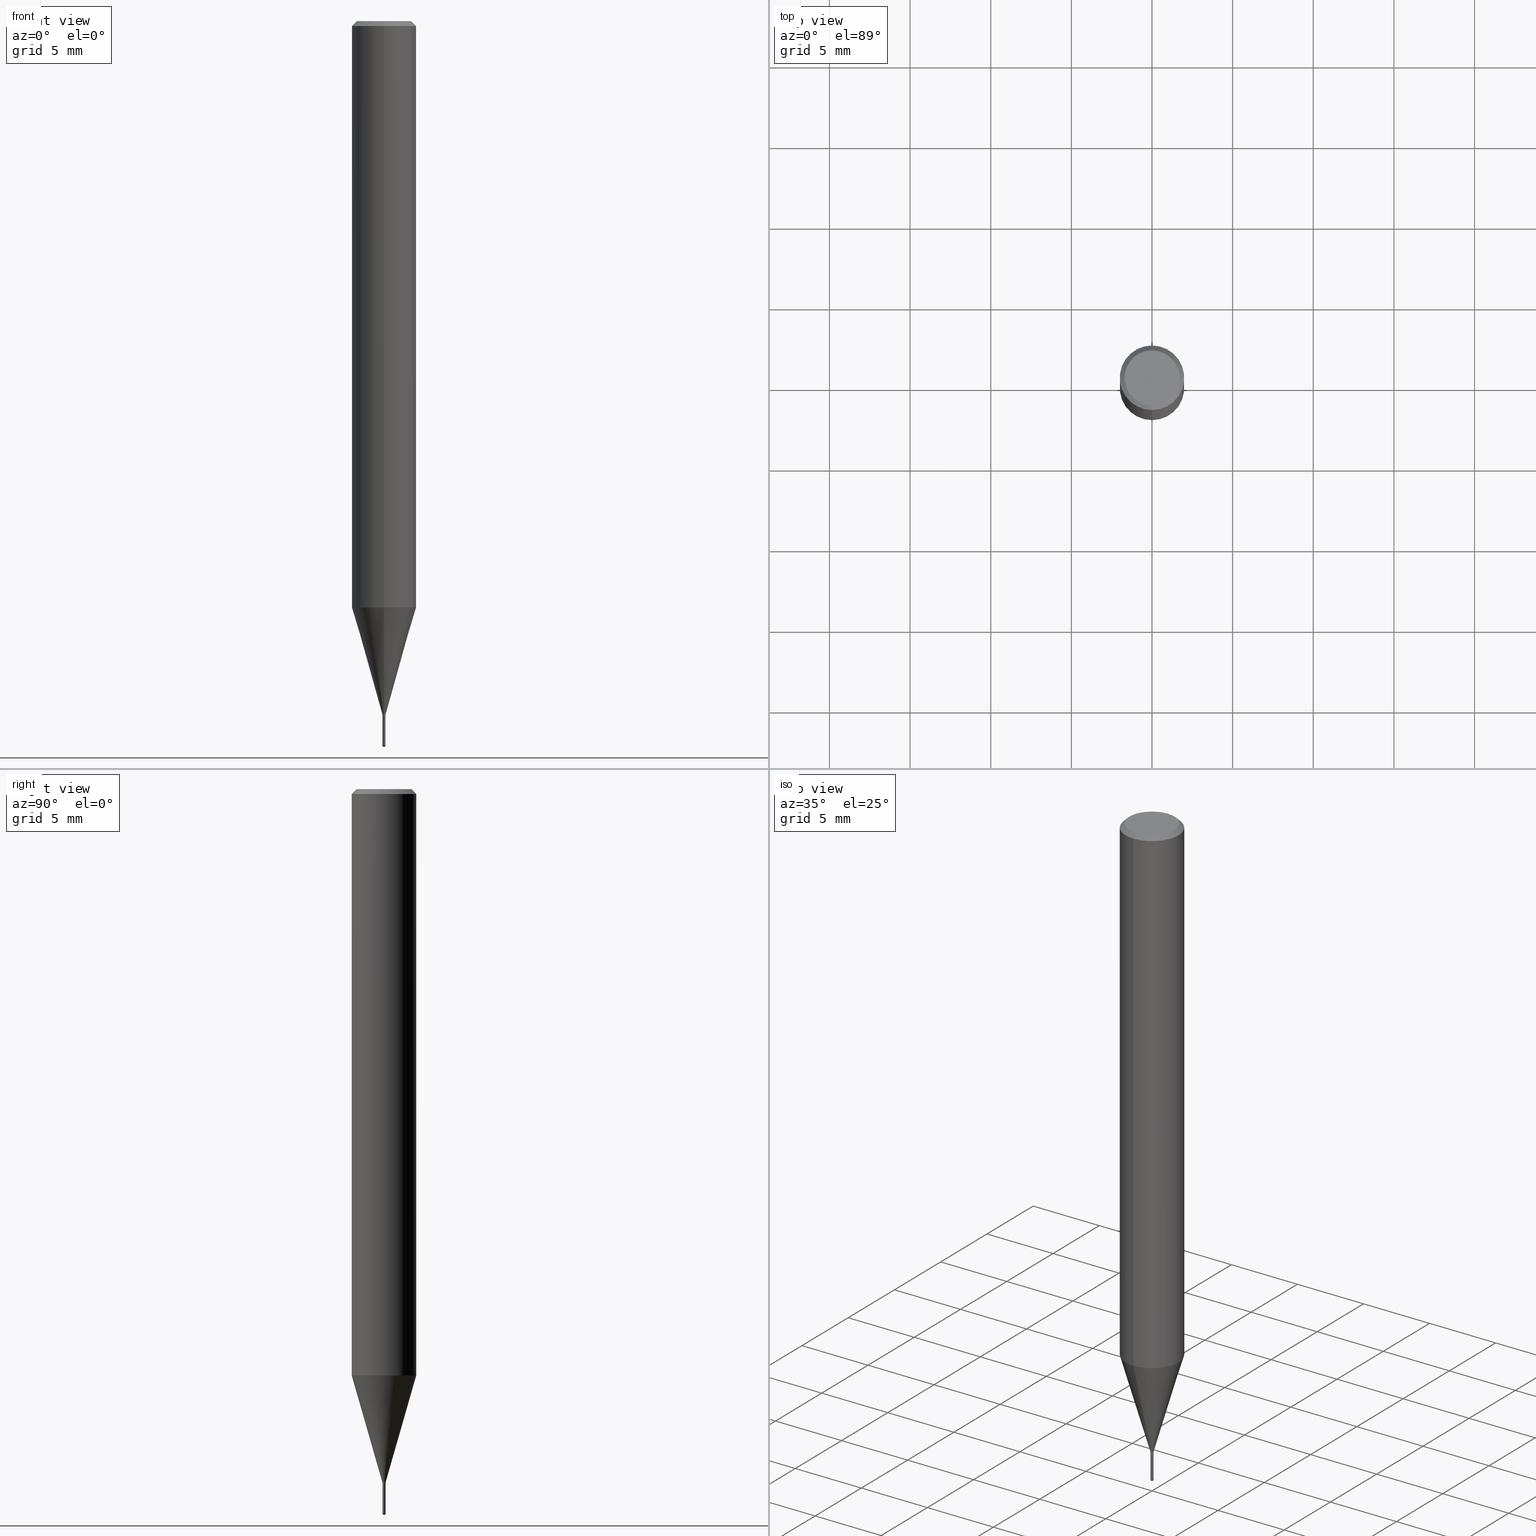
[diagram: canonical four-view strip — front | top / right | iso, engineering-drawing reading convention]
A machine part, canonical four-view strip (front | top / right | iso — engineering-drawing reading convention). The complete STEP part file that produces these views, byte-faithful:
ISO-10303-21;
HEADER;
FILE_DESCRIPTION(('no description'),'unknown implementation level');
FILE_NAME('HSLB2002-020-Huellk.stp','  ',('CIMSOURCE GmbH'),('CADClick - KiM GmbH - www.kimweb.de'),'unknown preprocess','ACIS','unknown authorization');
FILE_SCHEMA(('automotive_design'));
ENDSEC;
DATA;
#1=MECHANICAL_DESIGN_GEOMETRIC_PRESENTATION_REPRESENTATION(' ',(#14,#15,#16,#17,#18,#19,#20,#21,#22,#23,#24,#25,#26,#27,#28,#29,#30,#31,#32,#33,#34,#35,#36,#37,#38,#39,#40,#41,#42,#43,#44,#45,#46,#47,#48,#49,#50,#51,#52,#53,#54,#55,#56,#57,#58,#59,#60,#61,#62,#63,#64,#65,#66,#67,#68,#69,#70,#71,#72,#73,#74),#10);
#2=PRODUCT_DEFINITION_CONTEXT('',#75,'design');
#3=APPLICATION_PROTOCOL_DEFINITION('INTERNATIONAL STANDARD','automotive_design',1994,#75);
#4=PRODUCT_CATEGORY_RELATIONSHIP('NONE','NONE',#76,#77);
#5=SHAPE_DEFINITION_REPRESENTATION(#78,#79);
#6=PRODUCT_DEFINITION_CONTEXT('',#80,'design');
#7=APPLICATION_PROTOCOL_DEFINITION('INTERNATIONAL STANDARD','automotive_design',1994,#80);
#8=PRODUCT_CATEGORY_RELATIONSHIP('NONE','NONE',#81,#82);
#9=SHAPE_DEFINITION_REPRESENTATION(#83,#84);
#10= (GEOMETRIC_REPRESENTATION_CONTEXT(3)GLOBAL_UNCERTAINTY_ASSIGNED_CONTEXT((#87))GLOBAL_UNIT_ASSIGNED_CONTEXT((#89,#90,#91))REPRESENTATION_CONTEXT('NONE','WORKSPACE'));
#14=STYLED_ITEM('',(#93),#94);
#15=STYLED_ITEM('',(#95),#96);
#16=STYLED_ITEM('',(#97),#98);
#17=STYLED_ITEM('',(#99),#100);
#18=STYLED_ITEM('',(#101),#102);
#19=STYLED_ITEM('',(#103),#104);
#20=STYLED_ITEM('',(#105),#106);
#21=STYLED_ITEM('',(#107),#108);
#22=STYLED_ITEM('',(#109),#110);
#23=STYLED_ITEM('',(#111),#112);
#24=STYLED_ITEM('',(#113),#114);
#25=STYLED_ITEM('',(#115),#116);
#26=STYLED_ITEM('',(#117),#118);
#27=STYLED_ITEM('',(#119),#120);
#28=STYLED_ITEM('',(#121),#122);
#29=STYLED_ITEM('',(#123),#124);
#30=STYLED_ITEM('',(#125),#126);
#31=STYLED_ITEM('',(#127),#128);
#32=STYLED_ITEM('',(#129),#130);
#33=STYLED_ITEM('',(#131),#132);
#34=STYLED_ITEM('',(#133),#134);
#35=STYLED_ITEM('',(#135),#136);
#36=STYLED_ITEM('',(#137),#138);
#37=STYLED_ITEM('',(#139),#140);
#38=STYLED_ITEM('',(#141),#142);
#39=STYLED_ITEM('',(#143),#144);
#40=STYLED_ITEM('',(#145),#146);
#41=STYLED_ITEM('',(#147),#148);
#42=STYLED_ITEM('',(#149),#150);
#43=STYLED_ITEM('',(#151),#152);
#44=STYLED_ITEM('',(#153),#154);
#45=STYLED_ITEM('',(#155),#156);
#46=STYLED_ITEM('',(#157),#158);
#47=STYLED_ITEM('',(#159),#160);
#48=STYLED_ITEM('',(#161),#162);
#49=STYLED_ITEM('',(#163),#164);
#50=STYLED_ITEM('',(#165),#166);
#51=STYLED_ITEM('',(#167),#168);
#52=STYLED_ITEM('',(#169),#170);
#53=STYLED_ITEM('',(#171),#172);
#54=STYLED_ITEM('',(#173),#174);
#55=STYLED_ITEM('',(#175),#176);
#56=STYLED_ITEM('',(#177),#178);
#57=STYLED_ITEM('',(#179),#180);
#58=STYLED_ITEM('',(#181),#182);
#59=STYLED_ITEM('',(#183),#184);
#60=STYLED_ITEM('',(#185),#186);
#61=STYLED_ITEM('',(#187),#188);
#62=STYLED_ITEM('',(#189),#190);
#63=STYLED_ITEM('',(#191),#192);
#64=STYLED_ITEM('',(#193),#194);
#65=STYLED_ITEM('',(#195),#196);
#66=STYLED_ITEM('',(#197),#198);
#67=STYLED_ITEM('',(#199),#200);
#68=STYLED_ITEM('',(#201),#202);
#69=STYLED_ITEM('',(#203),#204);
#70=STYLED_ITEM('',(#205),#206);
#71=STYLED_ITEM('',(#207),#208);
#72=STYLED_ITEM('',(#209),#210);
#73=STYLED_ITEM('',(#211),#212);
#74=STYLED_ITEM('',(#213),#214);
#75=APPLICATION_CONTEXT(' ');
#76=PRODUCT_CATEGORY('part','NONE');
#77=PRODUCT_RELATED_PRODUCT_CATEGORY('detail',' ',(#215));
#78=PRODUCT_DEFINITION_SHAPE('NONE','NONE',#216);
#79=ADVANCED_BREP_SHAPE_REPRESENTATION('1',(#150,#217),#10);
#80=APPLICATION_CONTEXT(' ');
#81=PRODUCT_CATEGORY('part','NONE');
#82=PRODUCT_RELATED_PRODUCT_CATEGORY('detail',' ',(#218));
#83=PRODUCT_DEFINITION_SHAPE('NONE','NONE',#219);
#84=ADVANCED_BREP_SHAPE_REPRESENTATION('2',(#160,#220),#10);
#87=UNCERTAINTY_MEASURE_WITH_UNIT(LENGTH_MEASURE(1.0E-006),#89,'','');
#89= (CONVERSION_BASED_UNIT('MILLIMETRE',#223)LENGTH_UNIT()NAMED_UNIT(#226));
#90= (NAMED_UNIT(#228)PLANE_ANGLE_UNIT()SI_UNIT($,.RADIAN.));
#91= (NAMED_UNIT(#228)SOLID_ANGLE_UNIT()SI_UNIT($,.STERADIAN.));
#93=PRESENTATION_STYLE_ASSIGNMENT((#234));
#94=EDGE_CURVE('',#116,#190,#235,.T.);
#95=PRESENTATION_STYLE_ASSIGNMENT((#236));
#96=ADVANCED_FACE('',(#237),#238,.T.);
#97=PRESENTATION_STYLE_ASSIGNMENT((#239));
#98=VERTEX_POINT('',#240);
#99=PRESENTATION_STYLE_ASSIGNMENT((#241));
#100=EDGE_CURVE('',#192,#112,#242,.T.);
#101=PRESENTATION_STYLE_ASSIGNMENT((#243));
#102=ADVANCED_FACE('',(#244),#245,.T.);
#103=PRESENTATION_STYLE_ASSIGNMENT((#246));
#104=VERTEX_POINT('',#247);
#105=PRESENTATION_STYLE_ASSIGNMENT((#248));
#106=VERTEX_POINT('',#249);
#107=PRESENTATION_STYLE_ASSIGNMENT((#250));
#108=EDGE_CURVE('',#190,#210,#251,.T.);
#109=PRESENTATION_STYLE_ASSIGNMENT((#252));
#110=VERTEX_POINT('',#253);
#111=PRESENTATION_STYLE_ASSIGNMENT((#254));
#112=VERTEX_POINT('',#255);
#113=PRESENTATION_STYLE_ASSIGNMENT((#256));
#114=ADVANCED_FACE('',(#257),#258,.T.);
#115=PRESENTATION_STYLE_ASSIGNMENT((#259));
#116=VERTEX_POINT('',#260);
#117=PRESENTATION_STYLE_ASSIGNMENT((#261));
#118=ADVANCED_FACE('',(#262),#263,.T.);
#119=PRESENTATION_STYLE_ASSIGNMENT((#264));
#120=EDGE_CURVE('',#110,#210,#265,.T.);
#121=PRESENTATION_STYLE_ASSIGNMENT((#266));
#122=ADVANCED_FACE('',(#267),#268,.T.);
#123=PRESENTATION_STYLE_ASSIGNMENT((#269));
#124=ADVANCED_FACE('',(#270),#271,.T.);
#125=PRESENTATION_STYLE_ASSIGNMENT((#272));
#126=ADVANCED_FACE('',(#273),#274,.T.);
#127=PRESENTATION_STYLE_ASSIGNMENT((#275));
#128=VERTEX_POINT('',#276);
#129=PRESENTATION_STYLE_ASSIGNMENT((#277));
#130=EDGE_CURVE('',#98,#128,#278,.T.);
#131=PRESENTATION_STYLE_ASSIGNMENT((#279));
#132=ADVANCED_FACE('',(#280,#281),#282,.T.);
#133=PRESENTATION_STYLE_ASSIGNMENT((#283));
#134=VERTEX_POINT('',#284);
#135=PRESENTATION_STYLE_ASSIGNMENT((#285));
#136=VERTEX_POINT('',#286);
#137=PRESENTATION_STYLE_ASSIGNMENT((#287));
#138=EDGE_CURVE('',#128,#98,#288,.T.);
#139=PRESENTATION_STYLE_ASSIGNMENT((#289));
#140=ADVANCED_FACE('',(#290),#291,.T.);
#141=PRESENTATION_STYLE_ASSIGNMENT((#292));
#142=EDGE_CURVE('',#134,#190,#293,.T.);
#143=PRESENTATION_STYLE_ASSIGNMENT((#294));
#144=EDGE_CURVE('',#98,#192,#295,.T.);
#145=PRESENTATION_STYLE_ASSIGNMENT((#296));
#146=EDGE_CURVE('',#134,#182,#297,.T.);
#147=PRESENTATION_STYLE_ASSIGNMENT((#298));
#148=EDGE_CURVE('',#106,#104,#299,.T.);
#149=PRESENTATION_STYLE_ASSIGNMENT((#300));
#150=MANIFOLD_SOLID_BREP('1',#301);
#151=PRESENTATION_STYLE_ASSIGNMENT((#302));
#152=VERTEX_POINT('',#303);
#153=PRESENTATION_STYLE_ASSIGNMENT((#304));
#154=EDGE_CURVE('',#110,#116,#305,.T.);
#155=PRESENTATION_STYLE_ASSIGNMENT((#306));
#156=EDGE_CURVE('',#192,#200,#307,.T.);
#157=PRESENTATION_STYLE_ASSIGNMENT((#308));
#158=ADVANCED_FACE('',(#309),#310,.T.);
#159=PRESENTATION_STYLE_ASSIGNMENT((#311));
#160=MANIFOLD_SOLID_BREP('2',#312);
#161=PRESENTATION_STYLE_ASSIGNMENT((#313));
#162=EDGE_CURVE('',#112,#136,#314,.T.);
#163=PRESENTATION_STYLE_ASSIGNMENT((#315));
#164=ADVANCED_FACE('',(#316),#317,.T.);
#165=PRESENTATION_STYLE_ASSIGNMENT((#318));
#166=EDGE_CURVE('',#104,#106,#319,.T.);
#167=PRESENTATION_STYLE_ASSIGNMENT((#320));
#168=EDGE_CURVE('',#152,#198,#321,.T.);
#169=PRESENTATION_STYLE_ASSIGNMENT((#322));
#170=EDGE_CURVE('',#200,#128,#323,.T.);
#171=PRESENTATION_STYLE_ASSIGNMENT((#324));
#172=EDGE_CURVE('',#116,#182,#325,.T.);
#173=PRESENTATION_STYLE_ASSIGNMENT((#326));
#174=EDGE_CURVE('',#182,#134,#327,.T.);
#175=PRESENTATION_STYLE_ASSIGNMENT((#328));
#176=EDGE_CURVE('',#104,#152,#329,.T.);
#177=PRESENTATION_STYLE_ASSIGNMENT((#330));
#178=EDGE_CURVE('',#104,#106,#331,.T.);
#179=PRESENTATION_STYLE_ASSIGNMENT((#332));
#180=EDGE_CURVE('',#190,#116,#333,.T.);
#181=PRESENTATION_STYLE_ASSIGNMENT((#334));
#182=VERTEX_POINT('',#335);
#183=PRESENTATION_STYLE_ASSIGNMENT((#336));
#184=EDGE_CURVE('',#136,#200,#337,.T.);
#185=PRESENTATION_STYLE_ASSIGNMENT((#338));
#186=ADVANCED_FACE('',(#339),#340,.T.);
#187=PRESENTATION_STYLE_ASSIGNMENT((#341));
#188=ADVANCED_FACE('',(#342),#343,.T.);
#189=PRESENTATION_STYLE_ASSIGNMENT((#344));
#190=VERTEX_POINT('',#345);
#191=PRESENTATION_STYLE_ASSIGNMENT((#346));
#192=VERTEX_POINT('',#347);
#193=PRESENTATION_STYLE_ASSIGNMENT((#348));
#194=ADVANCED_FACE('',(#349),#350,.T.);
#195=PRESENTATION_STYLE_ASSIGNMENT((#351));
#196=EDGE_CURVE('',#136,#112,#352,.T.);
#197=PRESENTATION_STYLE_ASSIGNMENT((#353));
#198=VERTEX_POINT('',#354);
#199=PRESENTATION_STYLE_ASSIGNMENT((#355));
#200=VERTEX_POINT('',#356);
#201=PRESENTATION_STYLE_ASSIGNMENT((#357));
#202=EDGE_CURVE('',#198,#152,#358,.T.);
#203=PRESENTATION_STYLE_ASSIGNMENT((#359));
#204=ADVANCED_FACE('',(#360),#361,.T.);
#205=PRESENTATION_STYLE_ASSIGNMENT((#362));
#206=EDGE_CURVE('',#200,#192,#363,.T.);
#207=PRESENTATION_STYLE_ASSIGNMENT((#364));
#208=EDGE_CURVE('',#198,#106,#365,.T.);
#209=PRESENTATION_STYLE_ASSIGNMENT((#366));
#210=VERTEX_POINT('',#367);
#211=PRESENTATION_STYLE_ASSIGNMENT((#368));
#212=ADVANCED_FACE('',(#369),#370,.T.);
#213=PRESENTATION_STYLE_ASSIGNMENT((#371));
#214=EDGE_CURVE('',#210,#110,#372,.T.);
#215=PRODUCT('1','1','PART-1-DESC',(#373));
#216=PRODUCT_DEFINITION('NONE','NONE',#374,#2);
#217=AXIS2_PLACEMENT_3D('',#375,#376,#377);
#218=PRODUCT('2','2','PART-2-DESC',(#378));
#219=PRODUCT_DEFINITION('NONE','NONE',#379,#6);
#220=AXIS2_PLACEMENT_3D('',#380,#381,#382);
#223=LENGTH_MEASURE_WITH_UNIT(LENGTH_MEASURE(1.0),#383);
#226=DIMENSIONAL_EXPONENTS(1.0,0.0,0.0,0.0,0.0,0.0,0.0);
#228=DIMENSIONAL_EXPONENTS(0.0,0.0,0.0,0.0,0.0,0.0,0.0);
#234=CURVE_STYLE('',#384,POSITIVE_LENGTH_MEASURE(1.0E-006),#385);
#235=CIRCLE('',#386,0.09495);
#236=SURFACE_STYLE_USAGE(.BOTH.,#387);
#237=FACE_OUTER_BOUND('',#388,.T.);
#238=SPHERICAL_SURFACE('',#389,0.1);
#239=POINT_STYLE(' ',#390,POSITIVE_LENGTH_MEASURE(1.0E-006),#391);
#240=CARTESIAN_POINT('',(0.0,1.7,0.0));
#241=CURVE_STYLE('',#392,POSITIVE_LENGTH_MEASURE(1.0E-006),#393);
#242=LINE('',#394,#395);
#243=SURFACE_STYLE_USAGE(.BOTH.,#396);
#244=FACE_OUTER_BOUND('',#397,.T.);
#245=CYLINDRICAL_SURFACE('',#398,0.09495);
#246=POINT_STYLE(' ',#399,POSITIVE_LENGTH_MEASURE(1.0E-006),#400);
#247=CARTESIAN_POINT('',(1.22460635382238E-017,-0.1,-44.9));
#248=POINT_STYLE(' ',#401,POSITIVE_LENGTH_MEASURE(1.0E-006),#402);
#249=CARTESIAN_POINT('',(0.0,0.1,-44.9));
#250=CURVE_STYLE('',#403,POSITIVE_LENGTH_MEASURE(1.0E-006),#404);
#251=LINE('',#405,#406);
#252=POINT_STYLE(' ',#407,POSITIVE_LENGTH_MEASURE(1.0E-006),#408);
#253=CARTESIAN_POINT('',(0.0,1.99995,-36.356));
#254=POINT_STYLE(' ',#409,POSITIVE_LENGTH_MEASURE(1.0E-006),#410);
#255=CARTESIAN_POINT('',(0.0,2.0,-36.356));
#256=SURFACE_STYLE_USAGE(.BOTH.,#411);
#257=FACE_OUTER_BOUND('',#412,.T.);
#258=SPHERICAL_SURFACE('',#413,0.1);
#259=POINT_STYLE(' ',#414,POSITIVE_LENGTH_MEASURE(1.0E-006),#415);
#260=CARTESIAN_POINT('',(0.0,0.09495,-43.0));
#261=SURFACE_STYLE_USAGE(.BOTH.,#416);
#262=FACE_OUTER_BOUND('',#417,.T.);
#263=CONICAL_SURFACE('',#418,1.85,0.785398163397453);
#264=CURVE_STYLE('',#419,POSITIVE_LENGTH_MEASURE(1.0E-006),#420);
#265=CIRCLE('',#421,1.99995);
#266=SURFACE_STYLE_USAGE(.BOTH.,#422);
#267=FACE_OUTER_BOUND('',#423,.T.);
#268=CONICAL_SURFACE('',#424,0.09995,0.00166666512345941);
#269=SURFACE_STYLE_USAGE(.BOTH.,#425);
#270=FACE_OUTER_BOUND('',#426,.T.);
#271=CONICAL_SURFACE('',#427,1.04745,0.279233718115795);
#272=SURFACE_STYLE_USAGE(.BOTH.,#428);
#273=FACE_OUTER_BOUND('',#429,.T.);
#274=CYLINDRICAL_SURFACE('',#430,2.0);
#275=POINT_STYLE(' ',#431,POSITIVE_LENGTH_MEASURE(1.0E-006),#432);
#276=CARTESIAN_POINT('',(2.08183080149804E-016,-1.7,0.0));
#277=CURVE_STYLE('',#433,POSITIVE_LENGTH_MEASURE(1.0E-006),#434);
#278=CIRCLE('',#435,1.7);
#279=SURFACE_STYLE_USAGE(.BOTH.,#436);
#280=FACE_OUTER_BOUND('',#437,.T.);
#281=FACE_BOUND('',#438,.T.);
#282=PLANE('',#439);
#283=POINT_STYLE(' ',#440,POSITIVE_LENGTH_MEASURE(1.0E-006),#441);
#284=CARTESIAN_POINT('',(1.16276373295435E-017,-0.09495,-44.84));
#285=POINT_STYLE(' ',#442,POSITIVE_LENGTH_MEASURE(1.0E-006),#443);
#286=CARTESIAN_POINT('',(2.44921270764475E-016,-2.0,-36.356));
#287=CURVE_STYLE('',#444,POSITIVE_LENGTH_MEASURE(1.0E-006),#445);
#288=CIRCLE('',#446,1.7);
#289=SURFACE_STYLE_USAGE(.BOTH.,#447);
#290=FACE_OUTER_BOUND('',#448,.T.);
#291=CONICAL_SURFACE('',#449,1.85,0.785398163397453);
#292=CURVE_STYLE('',#450,POSITIVE_LENGTH_MEASURE(1.0E-006),#451);
#293=LINE('',#452,#453);
#294=CURVE_STYLE('',#454,POSITIVE_LENGTH_MEASURE(1.0E-006),#455);
#295=LINE('',#456,#457);
#296=CURVE_STYLE('',#458,POSITIVE_LENGTH_MEASURE(1.0E-006),#459);
#297=CIRCLE('',#460,0.09495);
#298=CURVE_STYLE('',#461,POSITIVE_LENGTH_MEASURE(1.0E-006),#462);
#299=CIRCLE('',#463,0.1);
#300=SURFACE_STYLE_USAGE(.BOTH.,#464);
#301=CLOSED_SHELL('',(#194,#124,#126,#140,#132,#212,#118,#204,#188,#102,#158));
#302=POINT_STYLE(' ',#465,POSITIVE_LENGTH_MEASURE(1.0E-006),#466);
#303=CARTESIAN_POINT('',(1.22338174746855E-017,-0.0999,-44.84));
#304=CURVE_STYLE('',#467,POSITIVE_LENGTH_MEASURE(1.0E-006),#468);
#305=LINE('',#469,#470);
#306=CURVE_STYLE('',#471,POSITIVE_LENGTH_MEASURE(1.0E-006),#472);
#307=CIRCLE('',#473,2.0);
#308=SURFACE_STYLE_USAGE(.BOTH.,#474);
#309=FACE_OUTER_BOUND('',#475,.T.);
#310=PLANE('',#476);
#311=SURFACE_STYLE_USAGE(.BOTH.,#477);
#312=CLOSED_SHELL('',(#114,#122,#164,#186,#96));
#313=CURVE_STYLE('',#478,POSITIVE_LENGTH_MEASURE(1.0E-006),#479);
#314=CIRCLE('',#480,2.0);
#315=SURFACE_STYLE_USAGE(.BOTH.,#481);
#316=FACE_OUTER_BOUND('',#482,.T.);
#317=PLANE('',#483);
#318=CURVE_STYLE('',#484,POSITIVE_LENGTH_MEASURE(1.0E-006),#485);
#319=CIRCLE('',#486,0.1);
#320=CURVE_STYLE('',#487,POSITIVE_LENGTH_MEASURE(1.0E-006),#488);
#321=CIRCLE('',#489,0.0999);
#322=CURVE_STYLE('',#490,POSITIVE_LENGTH_MEASURE(1.0E-006),#491);
#323=LINE('',#492,#493);
#324=CURVE_STYLE('',#494,POSITIVE_LENGTH_MEASURE(1.0E-006),#495);
#325=LINE('',#496,#497);
#326=CURVE_STYLE('',#498,POSITIVE_LENGTH_MEASURE(1.0E-006),#499);
#327=CIRCLE('',#500,0.09495);
#328=CURVE_STYLE('',#501,POSITIVE_LENGTH_MEASURE(1.0E-006),#502);
#329=LINE('',#503,#504);
#330=CURVE_STYLE('',#505,POSITIVE_LENGTH_MEASURE(1.0E-006),#506);
#331=CIRCLE('',#507,0.1);
#332=CURVE_STYLE('',#508,POSITIVE_LENGTH_MEASURE(1.0E-006),#509);
#333=CIRCLE('',#510,0.09495);
#334=POINT_STYLE(' ',#511,POSITIVE_LENGTH_MEASURE(1.0E-006),#512);
#335=CARTESIAN_POINT('',(0.0,0.09495,-44.84));
#336=CURVE_STYLE('',#513,POSITIVE_LENGTH_MEASURE(1.0E-006),#514);
#337=LINE('',#515,#516);
#338=SURFACE_STYLE_USAGE(.BOTH.,#517);
#339=FACE_OUTER_BOUND('',#518,.T.);
#340=CONICAL_SURFACE('',#519,0.09995,0.00166666512345941);
#341=SURFACE_STYLE_USAGE(.BOTH.,#520);
#342=FACE_OUTER_BOUND('',#521,.T.);
#343=CONICAL_SURFACE('',#522,1.04745,0.279233718115795);
#344=POINT_STYLE(' ',#523,POSITIVE_LENGTH_MEASURE(1.0E-006),#524);
#345=CARTESIAN_POINT('',(1.16276373295435E-017,-0.09495,-43.0));
#346=POINT_STYLE(' ',#525,POSITIVE_LENGTH_MEASURE(1.0E-006),#526);
#347=CARTESIAN_POINT('',(0.0,2.0,-0.299999999999997));
#348=SURFACE_STYLE_USAGE(.BOTH.,#527);
#349=FACE_OUTER_BOUND('',#528,.T.);
#350=CYLINDRICAL_SURFACE('',#529,0.09495);
#351=CURVE_STYLE('',#530,POSITIVE_LENGTH_MEASURE(1.0E-006),#531);
#352=CIRCLE('',#532,2.0);
#353=POINT_STYLE(' ',#533,POSITIVE_LENGTH_MEASURE(1.0E-006),#534);
#354=CARTESIAN_POINT('',(0.0,0.0999,-44.84));
#355=POINT_STYLE(' ',#535,POSITIVE_LENGTH_MEASURE(1.0E-006),#536);
#356=CARTESIAN_POINT('',(2.44921270764475E-016,-2.0,-0.299999999999997));
#357=CURVE_STYLE('',#537,POSITIVE_LENGTH_MEASURE(1.0E-006),#538);
#358=CIRCLE('',#539,0.0999);
#359=SURFACE_STYLE_USAGE(.BOTH.,#540);
#360=FACE_OUTER_BOUND('',#541,.T.);
#361=CYLINDRICAL_SURFACE('',#542,2.0);
#362=CURVE_STYLE('',#543,POSITIVE_LENGTH_MEASURE(1.0E-006),#544);
#363=CIRCLE('',#545,2.0);
#364=CURVE_STYLE('',#546,POSITIVE_LENGTH_MEASURE(1.0E-006),#547);
#365=LINE('',#548,#549);
#366=POINT_STYLE(' ',#550,POSITIVE_LENGTH_MEASURE(1.0E-006),#551);
#367=CARTESIAN_POINT('',(2.44915147732706E-016,-1.99995,-36.356));
#368=SURFACE_STYLE_USAGE(.BOTH.,#552);
#369=FACE_OUTER_BOUND('',#553,.T.);
#370=PLANE('',#554);
#371=CURVE_STYLE('',#555,POSITIVE_LENGTH_MEASURE(1.0E-006),#556);
#372=CIRCLE('',#557,1.99995);
#373=PRODUCT_CONTEXT('',#75,'mechanical');
#374=PRODUCT_DEFINITION_FORMATION_WITH_SPECIFIED_SOURCE(' ','NONE',#215,.NOT_KNOWN.);
#375=CARTESIAN_POINT('',(0.0,0.0,0.0));
#376=DIRECTION('',(0.0,0.0,1.0));
#377=DIRECTION('',(1.0,0.0,0.0));
#378=PRODUCT_CONTEXT('',#80,'mechanical');
#379=PRODUCT_DEFINITION_FORMATION_WITH_SPECIFIED_SOURCE(' ','NONE',#218,.NOT_KNOWN.);
#380=CARTESIAN_POINT('',(0.0,0.0,0.0));
#381=DIRECTION('',(0.0,0.0,1.0));
#382=DIRECTION('',(1.0,0.0,0.0));
#383= (NAMED_UNIT(#226)LENGTH_UNIT()SI_UNIT(.MILLI.,.METRE.));
#384=DRAUGHTING_PRE_DEFINED_CURVE_FONT('continuous');
#385=COLOUR_RGB('',0.498039215803146,0.498039215803146,0.498039215803146);
#386=AXIS2_PLACEMENT_3D('',#559,#560,#561);
#387=SURFACE_SIDE_STYLE('',(#562));
#388=EDGE_LOOP('',(#563,#564));
#389=AXIS2_PLACEMENT_3D('',#565,#566,#567);
#390=PRE_DEFINED_MARKER('');
#391=COLOUR_RGB('',0.498039215803146,0.498039215803146,0.498039215803146);
#392=DRAUGHTING_PRE_DEFINED_CURVE_FONT('continuous');
#393=COLOUR_RGB('',0.498039215803146,0.498039215803146,0.498039215803146);
#394=CARTESIAN_POINT('',(-2.44921270764475E-016,2.0,-18.328));
#395=VECTOR('',#568,1.0);
#396=SURFACE_SIDE_STYLE('',(#569));
#397=EDGE_LOOP('',(#570,#571,#572,#573));
#398=AXIS2_PLACEMENT_3D('',#574,#575,#576);
#399=PRE_DEFINED_MARKER('');
#400=COLOUR_RGB('',0.800000011920929,0.800000011920929,0.800000011920929);
#401=PRE_DEFINED_MARKER('');
#402=COLOUR_RGB('',0.800000011920929,0.800000011920929,0.800000011920929);
#403=DRAUGHTING_PRE_DEFINED_CURVE_FONT('continuous');
#404=COLOUR_RGB('',0.498039215803146,0.498039215803146,0.498039215803146);
#405=CARTESIAN_POINT('',(1.28271392531125E-016,-1.04745,-39.678));
#406=VECTOR('',#577,1.0);
#407=PRE_DEFINED_MARKER('');
#408=COLOUR_RGB('',0.498039215803146,0.498039215803146,0.498039215803146);
#409=PRE_DEFINED_MARKER('');
#410=COLOUR_RGB('',0.498039215803146,0.498039215803146,0.498039215803146);
#411=SURFACE_SIDE_STYLE('',(#578));
#412=EDGE_LOOP('',(#579,#580));
#413=AXIS2_PLACEMENT_3D('',#581,#582,#583);
#414=PRE_DEFINED_MARKER('');
#415=COLOUR_RGB('',0.498039215803146,0.498039215803146,0.498039215803146);
#416=SURFACE_SIDE_STYLE('',(#584));
#417=EDGE_LOOP('',(#585,#586,#587,#588));
#418=AXIS2_PLACEMENT_3D('',#589,#590,#591);
#419=DRAUGHTING_PRE_DEFINED_CURVE_FONT('continuous');
#420=COLOUR_RGB('',0.498039215803146,0.498039215803146,0.498039215803146);
#421=AXIS2_PLACEMENT_3D('',#592,#593,#594);
#422=SURFACE_SIDE_STYLE('',(#595));
#423=EDGE_LOOP('',(#596,#597,#598,#599));
#424=AXIS2_PLACEMENT_3D('',#600,#601,#602);
#425=SURFACE_SIDE_STYLE('',(#603));
#426=EDGE_LOOP('',(#604,#605,#606,#607));
#427=AXIS2_PLACEMENT_3D('',#608,#609,#610);
#428=SURFACE_SIDE_STYLE('',(#611));
#429=EDGE_LOOP('',(#612,#613,#614,#615));
#430=AXIS2_PLACEMENT_3D('',#616,#617,#618);
#431=PRE_DEFINED_MARKER('');
#432=COLOUR_RGB('',0.498039215803146,0.498039215803146,0.498039215803146);
#433=DRAUGHTING_PRE_DEFINED_CURVE_FONT('continuous');
#434=COLOUR_RGB('',0.498039215803146,0.498039215803146,0.498039215803146);
#435=AXIS2_PLACEMENT_3D('',#619,#620,#621);
#436=SURFACE_SIDE_STYLE('',(#622));
#437=EDGE_LOOP('',(#623,#624));
#438=EDGE_LOOP('',(#625,#626));
#439=AXIS2_PLACEMENT_3D('',#627,#628,#629);
#440=PRE_DEFINED_MARKER('');
#441=COLOUR_RGB('',0.498039215803146,0.498039215803146,0.498039215803146);
#442=PRE_DEFINED_MARKER('');
#443=COLOUR_RGB('',0.498039215803146,0.498039215803146,0.498039215803146);
#444=DRAUGHTING_PRE_DEFINED_CURVE_FONT('continuous');
#445=COLOUR_RGB('',0.498039215803146,0.498039215803146,0.498039215803146);
#446=AXIS2_PLACEMENT_3D('',#630,#631,#632);
#447=SURFACE_SIDE_STYLE('',(#633));
#448=EDGE_LOOP('',(#634,#635,#636,#637));
#449=AXIS2_PLACEMENT_3D('',#638,#639,#640);
#450=DRAUGHTING_PRE_DEFINED_CURVE_FONT('continuous');
#451=COLOUR_RGB('',0.498039215803146,0.498039215803146,0.498039215803146);
#452=CARTESIAN_POINT('',(1.16276373295435E-017,-0.09495,-43.92));
#453=VECTOR('',#641,1.0);
#454=DRAUGHTING_PRE_DEFINED_CURVE_FONT('continuous');
#455=COLOUR_RGB('',0.498039215803146,0.498039215803146,0.498039215803146);
#456=CARTESIAN_POINT('',(-2.2655217545714E-016,1.85,-0.149999999999999));
#457=VECTOR('',#642,1.0);
#458=DRAUGHTING_PRE_DEFINED_CURVE_FONT('continuous');
#459=COLOUR_RGB('',0.498039215803146,0.498039215803146,0.498039215803146);
#460=AXIS2_PLACEMENT_3D('',#643,#644,#645);
#461=DRAUGHTING_PRE_DEFINED_CURVE_FONT('continuous');
#462=COLOUR_RGB('',0.800000011920929,0.800000011920929,0.800000011920929);
#463=AXIS2_PLACEMENT_3D('',#646,#647,#648);
#464=SURFACE_SIDE_STYLE('',(#649));
#465=PRE_DEFINED_MARKER('');
#466=COLOUR_RGB('',0.800000011920929,0.800000011920929,0.800000011920929);
#467=DRAUGHTING_PRE_DEFINED_CURVE_FONT('continuous');
#468=COLOUR_RGB('',0.498039215803146,0.498039215803146,0.498039215803146);
#469=CARTESIAN_POINT('',(-1.28271392531125E-016,1.04745,-39.678));
#470=VECTOR('',#650,1.0);
#471=DRAUGHTING_PRE_DEFINED_CURVE_FONT('continuous');
#472=COLOUR_RGB('',0.498039215803146,0.498039215803146,0.498039215803146);
#473=AXIS2_PLACEMENT_3D('',#651,#652,#653);
#474=SURFACE_SIDE_STYLE('',(#654));
#475=EDGE_LOOP('',(#655,#656));
#476=AXIS2_PLACEMENT_3D('',#657,#658,#659);
#477=SURFACE_SIDE_STYLE('',(#660));
#478=DRAUGHTING_PRE_DEFINED_CURVE_FONT('continuous');
#479=COLOUR_RGB('',0.498039215803146,0.498039215803146,0.498039215803146);
#480=AXIS2_PLACEMENT_3D('',#661,#662,#663);
#481=SURFACE_SIDE_STYLE('',(#664));
#482=EDGE_LOOP('',(#665,#666));
#483=AXIS2_PLACEMENT_3D('',#667,#668,#669);
#484=DRAUGHTING_PRE_DEFINED_CURVE_FONT('continuous');
#485=COLOUR_RGB('',0.800000011920929,0.800000011920929,0.800000011920929);
#486=AXIS2_PLACEMENT_3D('',#670,#671,#672);
#487=DRAUGHTING_PRE_DEFINED_CURVE_FONT('continuous');
#488=COLOUR_RGB('',0.800000011920929,0.800000011920929,0.800000011920929);
#489=AXIS2_PLACEMENT_3D('',#673,#674,#675);
#490=DRAUGHTING_PRE_DEFINED_CURVE_FONT('continuous');
#491=COLOUR_RGB('',0.498039215803146,0.498039215803146,0.498039215803146);
#492=CARTESIAN_POINT('',(2.2655217545714E-016,-1.85,-0.149999999999999));
#493=VECTOR('',#676,1.0);
#494=DRAUGHTING_PRE_DEFINED_CURVE_FONT('continuous');
#495=COLOUR_RGB('',0.498039215803146,0.498039215803146,0.498039215803146);
#496=CARTESIAN_POINT('',(-1.16276373295435E-017,0.09495,-43.92));
#497=VECTOR('',#677,1.0);
#498=DRAUGHTING_PRE_DEFINED_CURVE_FONT('continuous');
#499=COLOUR_RGB('',0.498039215803146,0.498039215803146,0.498039215803146);
#500=AXIS2_PLACEMENT_3D('',#678,#679,#680);
#501=DRAUGHTING_PRE_DEFINED_CURVE_FONT('continuous');
#502=COLOUR_RGB('',0.800000011920929,0.800000011920929,0.800000011920929);
#503=CARTESIAN_POINT('',(1.22399405064547E-017,-0.09995,-44.87));
#504=VECTOR('',#681,1.0);
#505=DRAUGHTING_PRE_DEFINED_CURVE_FONT('continuous');
#506=COLOUR_RGB('',0.800000011920929,0.800000011920929,0.800000011920929);
#507=AXIS2_PLACEMENT_3D('',#682,#683,#684);
#508=DRAUGHTING_PRE_DEFINED_CURVE_FONT('continuous');
#509=COLOUR_RGB('',0.498039215803146,0.498039215803146,0.498039215803146);
#510=AXIS2_PLACEMENT_3D('',#685,#686,#687);
#511=PRE_DEFINED_MARKER('');
#512=COLOUR_RGB('',0.498039215803146,0.498039215803146,0.498039215803146);
#513=DRAUGHTING_PRE_DEFINED_CURVE_FONT('continuous');
#514=COLOUR_RGB('',0.498039215803146,0.498039215803146,0.498039215803146);
#515=CARTESIAN_POINT('',(2.44921270764475E-016,-2.0,-18.328));
#516=VECTOR('',#688,1.0);
#517=SURFACE_SIDE_STYLE('',(#689));
#518=EDGE_LOOP('',(#690,#691,#692,#693));
#519=AXIS2_PLACEMENT_3D('',#694,#695,#696);
#520=SURFACE_SIDE_STYLE('',(#697));
#521=EDGE_LOOP('',(#698,#699,#700,#701));
#522=AXIS2_PLACEMENT_3D('',#702,#703,#704);
#523=PRE_DEFINED_MARKER('');
#524=COLOUR_RGB('',0.498039215803146,0.498039215803146,0.498039215803146);
#525=PRE_DEFINED_MARKER('');
#526=COLOUR_RGB('',0.498039215803146,0.498039215803146,0.498039215803146);
#527=SURFACE_SIDE_STYLE('',(#705));
#528=EDGE_LOOP('',(#706,#707,#708,#709));
#529=AXIS2_PLACEMENT_3D('',#710,#711,#712);
#530=DRAUGHTING_PRE_DEFINED_CURVE_FONT('continuous');
#531=COLOUR_RGB('',0.498039215803146,0.498039215803146,0.498039215803146);
#532=AXIS2_PLACEMENT_3D('',#713,#714,#715);
#533=PRE_DEFINED_MARKER('');
#534=COLOUR_RGB('',0.800000011920929,0.800000011920929,0.800000011920929);
#535=PRE_DEFINED_MARKER('');
#536=COLOUR_RGB('',0.498039215803146,0.498039215803146,0.498039215803146);
#537=DRAUGHTING_PRE_DEFINED_CURVE_FONT('continuous');
#538=COLOUR_RGB('',0.800000011920929,0.800000011920929,0.800000011920929);
#539=AXIS2_PLACEMENT_3D('',#716,#717,#718);
#540=SURFACE_SIDE_STYLE('',(#719));
#541=EDGE_LOOP('',(#720,#721,#722,#723));
#542=AXIS2_PLACEMENT_3D('',#724,#725,#726);
#543=DRAUGHTING_PRE_DEFINED_CURVE_FONT('continuous');
#544=COLOUR_RGB('',0.498039215803146,0.498039215803146,0.498039215803146);
#545=AXIS2_PLACEMENT_3D('',#727,#728,#729);
#546=DRAUGHTING_PRE_DEFINED_CURVE_FONT('continuous');
#547=COLOUR_RGB('',0.800000011920929,0.800000011920929,0.800000011920929);
#548=CARTESIAN_POINT('',(-1.22399405064547E-017,0.09995,-44.87));
#549=VECTOR('',#730,1.0);
#550=PRE_DEFINED_MARKER('');
#551=COLOUR_RGB('',0.498039215803146,0.498039215803146,0.498039215803146);
#552=SURFACE_SIDE_STYLE('',(#731));
#553=EDGE_LOOP('',(#732,#733));
#554=AXIS2_PLACEMENT_3D('',#734,#735,#736);
#555=DRAUGHTING_PRE_DEFINED_CURVE_FONT('continuous');
#556=COLOUR_RGB('',0.498039215803146,0.498039215803146,0.498039215803146);
#557=AXIS2_PLACEMENT_3D('',#737,#738,#739);
#559=CARTESIAN_POINT('',(0.0,0.0,-43.0));
#560=DIRECTION('',(0.0,0.0,-1.0));
#561=DIRECTION('',(0.0,1.0,0.0));
#562=SURFACE_STYLE_FILL_AREA(#740);
#563=ORIENTED_EDGE('',*,*,#166,.T.);
#564=ORIENTED_EDGE('',*,*,#148,.T.);
#565=CARTESIAN_POINT('',(0.0,0.0,-44.9));
#566=DIRECTION('',(0.0,1.0,0.0));
#567=DIRECTION('',(0.0,0.0,-1.0));
#568=DIRECTION('',(0.0,0.0,-1.0));
#569=SURFACE_STYLE_FILL_AREA(#741);
#570=ORIENTED_EDGE('',*,*,#172,.T.);
#571=ORIENTED_EDGE('',*,*,#146,.F.);
#572=ORIENTED_EDGE('',*,*,#142,.T.);
#573=ORIENTED_EDGE('',*,*,#180,.T.);
#574=CARTESIAN_POINT('',(0.0,0.0,-43.92));
#575=DIRECTION('',(-0.0,-0.0,1.0));
#576=DIRECTION('',(0.0,1.0,0.0));
#577=DIRECTION('',(3.37524935540219E-017,-0.275619128127744,0.961266922457078));
#578=SURFACE_STYLE_FILL_AREA(#742);
#579=ORIENTED_EDGE('',*,*,#166,.F.);
#580=ORIENTED_EDGE('',*,*,#178,.T.);
#581=CARTESIAN_POINT('',(0.0,0.0,-44.9));
#582=DIRECTION('',(0.0,1.0,0.0));
#583=DIRECTION('',(0.0,0.0,-1.0));
#584=SURFACE_STYLE_FILL_AREA(#743);
#585=ORIENTED_EDGE('',*,*,#144,.T.);
#586=ORIENTED_EDGE('',*,*,#206,.F.);
#587=ORIENTED_EDGE('',*,*,#170,.T.);
#588=ORIENTED_EDGE('',*,*,#138,.T.);
#589=CARTESIAN_POINT('',(0.0,0.0,-0.149999999999999));
#590=DIRECTION('',(0.0,-0.0,-1.0));
#591=DIRECTION('',(0.0,1.0,0.0));
#592=CARTESIAN_POINT('',(0.0,0.0,-36.356));
#593=DIRECTION('',(0.0,0.0,-1.0));
#594=DIRECTION('',(0.0,1.0,0.0));
#595=SURFACE_STYLE_FILL_AREA(#744);
#596=ORIENTED_EDGE('',*,*,#208,.F.);
#597=ORIENTED_EDGE('',*,*,#202,.T.);
#598=ORIENTED_EDGE('',*,*,#176,.F.);
#599=ORIENTED_EDGE('',*,*,#148,.F.);
#600=CARTESIAN_POINT('',(0.0,0.0,-44.87));
#601=DIRECTION('',(0.0,-0.0,-1.0));
#602=DIRECTION('',(0.0,1.0,0.0));
#603=SURFACE_STYLE_FILL_AREA(#745);
#604=ORIENTED_EDGE('',*,*,#154,.F.);
#605=ORIENTED_EDGE('',*,*,#120,.T.);
#606=ORIENTED_EDGE('',*,*,#108,.F.);
#607=ORIENTED_EDGE('',*,*,#94,.F.);
#608=CARTESIAN_POINT('',(0.0,0.0,-39.678));
#609=DIRECTION('',(-0.0,-0.0,1.0));
#610=DIRECTION('',(0.0,1.0,0.0));
#611=SURFACE_STYLE_FILL_AREA(#746);
#612=ORIENTED_EDGE('',*,*,#100,.F.);
#613=ORIENTED_EDGE('',*,*,#156,.T.);
#614=ORIENTED_EDGE('',*,*,#184,.F.);
#615=ORIENTED_EDGE('',*,*,#162,.F.);
#616=CARTESIAN_POINT('',(0.0,0.0,-18.328));
#617=DIRECTION('',(-0.0,-0.0,1.0));
#618=DIRECTION('',(0.0,1.0,0.0));
#619=CARTESIAN_POINT('',(0.0,0.0,0.0));
#620=DIRECTION('',(0.0,0.0,-1.0));
#621=DIRECTION('',(0.0,1.0,0.0));
#622=SURFACE_STYLE_FILL_AREA(#747);
#623=ORIENTED_EDGE('',*,*,#162,.T.);
#624=ORIENTED_EDGE('',*,*,#196,.T.);
#625=ORIENTED_EDGE('',*,*,#120,.F.);
#626=ORIENTED_EDGE('',*,*,#214,.F.);
#627=CARTESIAN_POINT('',(0.0,1.0,-36.356));
#628=DIRECTION('',(0.0,0.0,-1.0));
#629=DIRECTION('',(0.0,1.0,0.0));
#630=CARTESIAN_POINT('',(0.0,0.0,0.0));
#631=DIRECTION('',(0.0,0.0,-1.0));
#632=DIRECTION('',(0.0,1.0,0.0));
#633=SURFACE_STYLE_FILL_AREA(#748);
#634=ORIENTED_EDGE('',*,*,#144,.F.);
#635=ORIENTED_EDGE('',*,*,#130,.T.);
#636=ORIENTED_EDGE('',*,*,#170,.F.);
#637=ORIENTED_EDGE('',*,*,#156,.F.);
#638=CARTESIAN_POINT('',(0.0,0.0,-0.149999999999999));
#639=DIRECTION('',(0.0,-0.0,-1.0));
#640=DIRECTION('',(0.0,1.0,0.0));
#641=DIRECTION('',(-0.0,-0.0,1.0));
#642=DIRECTION('',(-8.6592745707194E-017,0.707106781186551,-0.707106781186544));
#643=CARTESIAN_POINT('',(0.0,0.0,-44.84));
#644=DIRECTION('',(0.0,0.0,-1.0));
#645=DIRECTION('',(0.0,1.0,0.0));
#646=CARTESIAN_POINT('',(0.0,0.0,-44.9));
#647=DIRECTION('',(0.0,0.0,-1.0));
#648=DIRECTION('',(0.0,1.0,0.0));
#649=SURFACE_STYLE_FILL_AREA(#749);
#650=DIRECTION('',(3.37524935540219E-017,-0.275619128127744,-0.961266922457078));
#651=CARTESIAN_POINT('',(0.0,0.0,-0.299999999999997));
#652=DIRECTION('',(0.0,0.0,-1.0));
#653=DIRECTION('',(0.0,1.0,0.0));
#654=SURFACE_STYLE_FILL_AREA(#750);
#655=ORIENTED_EDGE('',*,*,#174,.T.);
#656=ORIENTED_EDGE('',*,*,#146,.T.);
#657=CARTESIAN_POINT('',(0.0,0.047475,-44.84));
#658=DIRECTION('',(0.0,0.0,-1.0));
#659=DIRECTION('',(0.0,1.0,0.0));
#660=SURFACE_STYLE_FILL_AREA(#751);
#661=CARTESIAN_POINT('',(0.0,0.0,-36.356));
#662=DIRECTION('',(0.0,0.0,-1.0));
#663=DIRECTION('',(0.0,1.0,0.0));
#664=SURFACE_STYLE_FILL_AREA(#752);
#665=ORIENTED_EDGE('',*,*,#202,.F.);
#666=ORIENTED_EDGE('',*,*,#168,.F.);
#667=CARTESIAN_POINT('',(0.0,0.04995,-44.84));
#668=DIRECTION('',(-0.0,0.0,1.0));
#669=DIRECTION('',(0.0,-1.0,0.0));
#670=CARTESIAN_POINT('',(0.0,0.0,-44.9));
#671=DIRECTION('',(1.0,0.0,1.22460635382236E-016));
#672=DIRECTION('',(-1.22460635382236E-016,0.0,1.0));
#673=CARTESIAN_POINT('',(0.0,0.0,-44.84));
#674=DIRECTION('',(0.0,0.0,-1.0));
#675=DIRECTION('',(0.0,1.0,0.0));
#676=DIRECTION('',(-8.6592745707194E-017,0.707106781186551,0.707106781186544));
#677=DIRECTION('',(0.0,0.0,-1.0));
#678=CARTESIAN_POINT('',(0.0,0.0,-44.84));
#679=DIRECTION('',(0.0,0.0,-1.0));
#680=DIRECTION('',(0.0,1.0,0.0));
#681=DIRECTION('',(-2.041007754973E-019,0.00166666435185672,0.999998611114005));
#682=CARTESIAN_POINT('',(0.0,0.0,-44.9));
#683=DIRECTION('',(0.0,0.0,-1.0));
#684=DIRECTION('',(0.0,1.0,0.0));
#685=CARTESIAN_POINT('',(0.0,0.0,-43.0));
#686=DIRECTION('',(0.0,0.0,-1.0));
#687=DIRECTION('',(0.0,1.0,0.0));
#688=DIRECTION('',(-0.0,-0.0,1.0));
#689=SURFACE_STYLE_FILL_AREA(#753);
#690=ORIENTED_EDGE('',*,*,#208,.T.);
#691=ORIENTED_EDGE('',*,*,#178,.F.);
#692=ORIENTED_EDGE('',*,*,#176,.T.);
#693=ORIENTED_EDGE('',*,*,#168,.T.);
#694=CARTESIAN_POINT('',(0.0,0.0,-44.87));
#695=DIRECTION('',(0.0,-0.0,-1.0));
#696=DIRECTION('',(0.0,1.0,0.0));
#697=SURFACE_STYLE_FILL_AREA(#754);
#698=ORIENTED_EDGE('',*,*,#154,.T.);
#699=ORIENTED_EDGE('',*,*,#180,.F.);
#700=ORIENTED_EDGE('',*,*,#108,.T.);
#701=ORIENTED_EDGE('',*,*,#214,.T.);
#702=CARTESIAN_POINT('',(0.0,0.0,-39.678));
#703=DIRECTION('',(-0.0,-0.0,1.0));
#704=DIRECTION('',(0.0,1.0,0.0));
#705=SURFACE_STYLE_FILL_AREA(#755);
#706=ORIENTED_EDGE('',*,*,#172,.F.);
#707=ORIENTED_EDGE('',*,*,#94,.T.);
#708=ORIENTED_EDGE('',*,*,#142,.F.);
#709=ORIENTED_EDGE('',*,*,#174,.F.);
#710=CARTESIAN_POINT('',(0.0,0.0,-43.92));
#711=DIRECTION('',(-0.0,-0.0,1.0));
#712=DIRECTION('',(0.0,1.0,0.0));
#713=CARTESIAN_POINT('',(0.0,0.0,-36.356));
#714=DIRECTION('',(0.0,0.0,-1.0));
#715=DIRECTION('',(0.0,1.0,0.0));
#716=CARTESIAN_POINT('',(0.0,0.0,-44.84));
#717=DIRECTION('',(0.0,0.0,-1.0));
#718=DIRECTION('',(0.0,1.0,0.0));
#719=SURFACE_STYLE_FILL_AREA(#756);
#720=ORIENTED_EDGE('',*,*,#100,.T.);
#721=ORIENTED_EDGE('',*,*,#196,.F.);
#722=ORIENTED_EDGE('',*,*,#184,.T.);
#723=ORIENTED_EDGE('',*,*,#206,.T.);
#724=CARTESIAN_POINT('',(0.0,0.0,-18.328));
#725=DIRECTION('',(-0.0,-0.0,1.0));
#726=DIRECTION('',(0.0,1.0,0.0));
#727=CARTESIAN_POINT('',(0.0,0.0,-0.299999999999997));
#728=DIRECTION('',(0.0,0.0,-1.0));
#729=DIRECTION('',(0.0,1.0,0.0));
#730=DIRECTION('',(-2.041007754973E-019,0.00166666435185672,-0.999998611114005));
#731=SURFACE_STYLE_FILL_AREA(#757);
#732=ORIENTED_EDGE('',*,*,#130,.F.);
#733=ORIENTED_EDGE('',*,*,#138,.F.);
#734=CARTESIAN_POINT('',(0.0,0.85,0.0));
#735=DIRECTION('',(-0.0,0.0,1.0));
#736=DIRECTION('',(0.0,-1.0,0.0));
#737=CARTESIAN_POINT('',(0.0,0.0,-36.356));
#738=DIRECTION('',(0.0,0.0,-1.0));
#739=DIRECTION('',(0.0,1.0,0.0));
#740=FILL_AREA_STYLE('',(#758));
#741=FILL_AREA_STYLE('',(#759));
#742=FILL_AREA_STYLE('',(#760));
#743=FILL_AREA_STYLE('',(#761));
#744=FILL_AREA_STYLE('',(#762));
#745=FILL_AREA_STYLE('',(#763));
#746=FILL_AREA_STYLE('',(#764));
#747=FILL_AREA_STYLE('',(#765));
#748=FILL_AREA_STYLE('',(#766));
#749=FILL_AREA_STYLE('',(#767));
#750=FILL_AREA_STYLE('',(#768));
#751=FILL_AREA_STYLE('',(#769));
#752=FILL_AREA_STYLE('',(#770));
#753=FILL_AREA_STYLE('',(#771));
#754=FILL_AREA_STYLE('',(#772));
#755=FILL_AREA_STYLE('',(#773));
#756=FILL_AREA_STYLE('',(#774));
#757=FILL_AREA_STYLE('',(#775));
#758=FILL_AREA_STYLE_COLOUR('',#776);
#759=FILL_AREA_STYLE_COLOUR('',#777);
#760=FILL_AREA_STYLE_COLOUR('',#778);
#761=FILL_AREA_STYLE_COLOUR('',#779);
#762=FILL_AREA_STYLE_COLOUR('',#780);
#763=FILL_AREA_STYLE_COLOUR('',#781);
#764=FILL_AREA_STYLE_COLOUR('',#782);
#765=FILL_AREA_STYLE_COLOUR('',#783);
#766=FILL_AREA_STYLE_COLOUR('',#784);
#767=FILL_AREA_STYLE_COLOUR('',#785);
#768=FILL_AREA_STYLE_COLOUR('',#786);
#769=FILL_AREA_STYLE_COLOUR('',#787);
#770=FILL_AREA_STYLE_COLOUR('',#788);
#771=FILL_AREA_STYLE_COLOUR('',#789);
#772=FILL_AREA_STYLE_COLOUR('',#790);
#773=FILL_AREA_STYLE_COLOUR('',#791);
#774=FILL_AREA_STYLE_COLOUR('',#792);
#775=FILL_AREA_STYLE_COLOUR('',#793);
#776=COLOUR_RGB('',0.800000011920929,0.800000011920929,0.800000011920929);
#777=COLOUR_RGB('',0.498039215803146,0.498039215803146,0.498039215803146);
#778=COLOUR_RGB('',0.800000011920929,0.800000011920929,0.800000011920929);
#779=COLOUR_RGB('',0.498039215803146,0.498039215803146,0.498039215803146);
#780=COLOUR_RGB('',0.800000011920929,0.800000011920929,0.800000011920929);
#781=COLOUR_RGB('',0.498039215803146,0.498039215803146,0.498039215803146);
#782=COLOUR_RGB('',0.498039215803146,0.498039215803146,0.498039215803146);
#783=COLOUR_RGB('',0.498039215803146,0.498039215803146,0.498039215803146);
#784=COLOUR_RGB('',0.498039215803146,0.498039215803146,0.498039215803146);
#785=COLOUR_RGB('',0.498039215803146,0.498039215803146,0.498039215803146);
#786=COLOUR_RGB('',0.498039215803146,0.498039215803146,0.498039215803146);
#787=COLOUR_RGB('',0.800000011920929,0.800000011920929,0.800000011920929);
#788=COLOUR_RGB('',0.800000011920929,0.800000011920929,0.800000011920929);
#789=COLOUR_RGB('',0.800000011920929,0.800000011920929,0.800000011920929);
#790=COLOUR_RGB('',0.498039215803146,0.498039215803146,0.498039215803146);
#791=COLOUR_RGB('',0.498039215803146,0.498039215803146,0.498039215803146);
#792=COLOUR_RGB('',0.498039215803146,0.498039215803146,0.498039215803146);
#793=COLOUR_RGB('',0.498039215803146,0.498039215803146,0.498039215803146);
#794=AXIS2_PLACEMENT_3D('PCS',#795,#796,#797);
#795=CARTESIAN_POINT('',(0.0,0.0,0.0));
#796=DIRECTION('',(0.0,0.0,1.0));
#797=DIRECTION('',(1.0,0.0,0.0));
#798=AXIS2_PLACEMENT_3D('CIP',#799,#800,#801);
#799=CARTESIAN_POINT('',(0.0,0.0,-45.0));
#800=DIRECTION('',(0.0,0.0,1.0));
#801=DIRECTION('',(1.0,0.0,0.0));
#802=AXIS2_PLACEMENT_3D('CRP',#803,#804,#805);
#803=CARTESIAN_POINT('',(-0.1,0.0,-45.0));
#804=DIRECTION('',(0.0,0.0,1.0));
#805=DIRECTION('',(1.0,0.0,0.0));
#806=AXIS2_PLACEMENT_3D('MCS',#807,#808,#809);
#807=CARTESIAN_POINT('',(0.0,0.0,-36.356));
#808=DIRECTION('',(0.0,0.0,1.0));
#809=DIRECTION('',(1.0,0.0,0.0));
#810=CONSTRUCTIVE_GEOMETRY_REPRESENTATION_RELATIONSHIP('coordinate systems',$,#79,#811);
#811=CONSTRUCTIVE_GEOMETRY_REPRESENTATION('coordinate systems',(#794,#798,#802,#806),#10);
ENDSEC;
END-ISO-10303-21;
